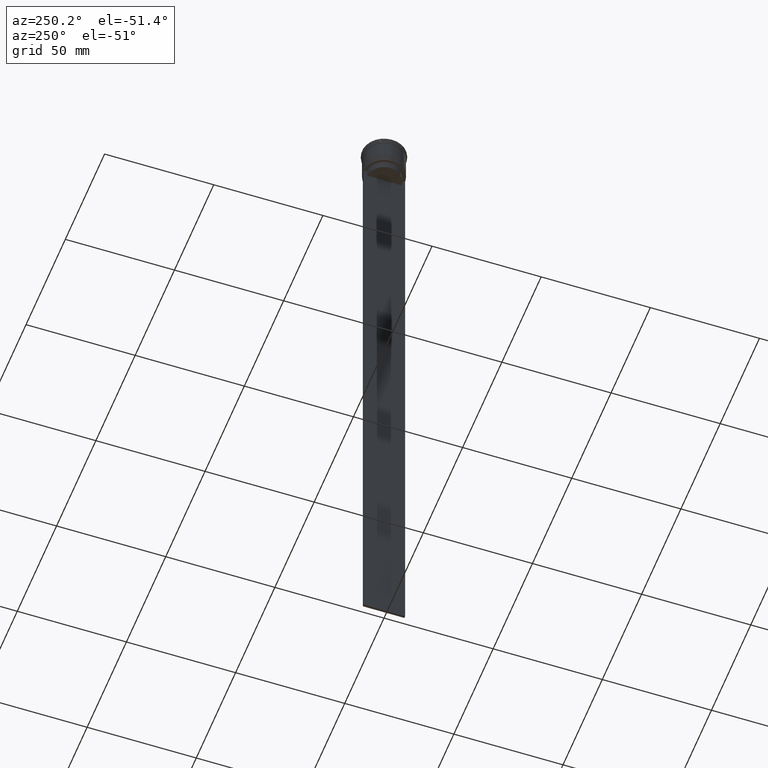
[diagram: clean part render]
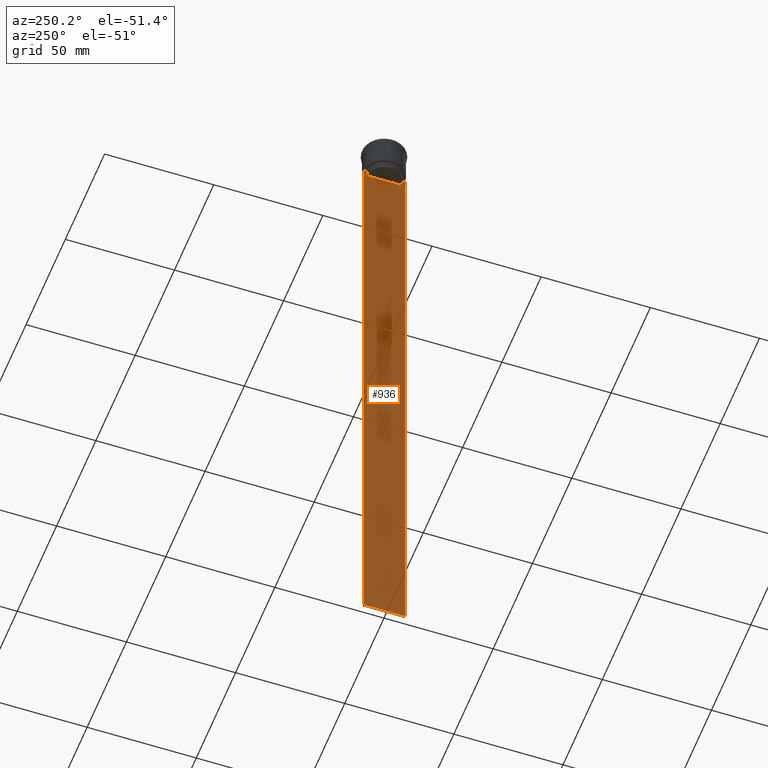
[diagram: same view with one face highlighted and labeled with its STEP entity id]
A machine part, auxiliary view. The second image highlights one B-rep face of the part: STEP entity #936.
In plain terms, the highlighted planar face has unit normal (-1, 0, 0).
Its self-contained STEP definition (entity closure, byte-faithful):
#73 = DIRECTION ( 'NONE',  ( -1.000000000000000000, 0.000000000000000000, 0.000000000000000000 ) ) ;
#122 = EDGE_CURVE ( 'NONE', #2658, #2182, #875, .T. ) ;
#123 = B_SPLINE_CURVE_WITH_KNOTS ( 'NONE', 3,
 ( #2434, #1222, #1264, #1023 ),
 .UNSPECIFIED., .F., .F.,
 ( 4, 4 ),
 ( 0.01426761478740281447, 0.01497538974438914448 ),
 .UNSPECIFIED. ) ;
#145 = VECTOR ( 'NONE', #1099, 1000.000000000000000 ) ;
#146 = EDGE_CURVE ( 'NONE', #366, #561, #1108, .T. ) ;
#155 = ORIENTED_EDGE ( 'NONE', *, *, #1243, .T. ) ;
#170 = ORIENTED_EDGE ( 'NONE', *, *, #933, .F. ) ;
#212 = CARTESIAN_POINT ( 'NONE',  ( -0.5000000000000000000, -8.385105843100605583, -14.00000000000000178 ) ) ;
#248 = ORIENTED_EDGE ( 'NONE', *, *, #519, .F. ) ;
#286 = CARTESIAN_POINT ( 'NONE',  ( -0.5000000000000000000, 7.884161337770803080, -14.50000000000000000 ) ) ;
#292 = EDGE_CURVE ( 'NONE', #2182, #600, #1343, .T. ) ;
#293 = CARTESIAN_POINT ( 'NONE',  ( -0.5000000000000000000, 8.385105843100605583, -14.00000000000000178 ) ) ;
#306 = EDGE_CURVE ( 'NONE', #1950, #2658, #2262, .T. ) ;
#349 = ORIENTED_EDGE ( 'NONE', *, *, #1444, .F. ) ;
#357 = ORIENTED_EDGE ( 'NONE', *, *, #2333, .F. ) ;
#360 = CARTESIAN_POINT ( 'NONE',  ( -0.5000000000000000000, -9.386692708297204035, -14.00000000000000178 ) ) ;
#366 = VERTEX_POINT ( 'NONE', #1432 ) ;
#396 = CARTESIAN_POINT ( 'NONE',  ( -0.5000000000000000000, -9.500000000000001776, -14.00000000000000178 ) ) ;
#403 = CARTESIAN_POINT ( 'NONE',  ( -0.5000000000000000000, 9.386692708297204035, -14.00000000000000178 ) ) ;
#451 = CARTESIAN_POINT ( 'NONE',  ( -0.5000000000000000000, -9.500000000000001776, -14.00000000000000178 ) ) ;
#491 = VECTOR ( 'NONE', #497, 1000.000000000000000 ) ;
#493 = CARTESIAN_POINT ( 'NONE',  ( -0.5000000000000000000, -7.884161337770803080, -14.50000000000000000 ) ) ;
#497 = DIRECTION ( 'NONE',  ( 0.000000000000000000, 0.000000000000000000, -1.000000000000000000 ) ) ;
#500 = LINE ( 'NONE', #729, #145 ) ;
#519 = EDGE_CURVE ( 'NONE', #2583, #1161, #1887, .T. ) ;
#524 = FACE_OUTER_BOUND ( 'NONE', #2243, .T. ) ;
#535 = CARTESIAN_POINT ( 'NONE',  ( -0.5000000000000000000, -9.500000000000001776, -14.00000000000000178 ) ) ;
#540 = VECTOR ( 'NONE', #738, 1000.000000000000000 ) ;
#561 = VERTEX_POINT ( 'NONE', #493 ) ;
#574 = EDGE_CURVE ( 'NONE', #561, #2238, #2443, .T. ) ;
#590 = VERTEX_POINT ( 'NONE', #293 ) ;
#600 = VERTEX_POINT ( 'NONE', #2194 ) ;
#671 = CARTESIAN_POINT ( 'NONE',  ( -0.5000000000000000000, -7.884161337770803080, -14.50000000000000000 ) ) ;
#695 = CARTESIAN_POINT ( 'NONE',  ( -0.5000000000000000000, -8.385105843100605583, -14.00000000000000178 ) ) ;
#707 = AXIS2_PLACEMENT_3D ( 'NONE', #1322, #73, #1123 ) ;
#729 = CARTESIAN_POINT ( 'NONE',  ( -0.5000000000000000000, 7.899999999999994138, -17.00000000000000000 ) ) ;
#738 = DIRECTION ( 'NONE',  ( 0.000000000000000000, -1.000000000000000000, 0.000000000000000000 ) ) ;
#744 = ORIENTED_EDGE ( 'NONE', *, *, #292, .F. ) ;
#875 = LINE ( 'NONE', #900, #491 ) ;
#885 = EDGE_CURVE ( 'NONE', #1161, #590, #2551, .T. ) ;
#900 = CARTESIAN_POINT ( 'NONE',  ( -0.5000000000000000000, -9.500000000000001776, 5.026297590440445440 ) ) ;
#929 = CARTESIAN_POINT ( 'NONE',  ( -0.5000000000000000000, -9.500000000000001776, -314.0000000000000000 ) ) ;
#933 = EDGE_CURVE ( 'NONE', #2231, #366, #500, .T. ) ;
#936 = ADVANCED_FACE ( 'NONE', ( #524 ), #1510, .T. ) ;
#991 = ORIENTED_EDGE ( 'NONE', *, *, #122, .F. ) ;
#1023 = CARTESIAN_POINT ( 'NONE',  ( -0.5000000000000000000, 7.884161337770803080, -14.50000000000000000 ) ) ;
#1026 = DIRECTION ( 'NONE',  ( 0.000000000000000000, 0.000000000000000000, -1.000000000000000000 ) ) ;
#1049 = VECTOR ( 'NONE', #1691, 1000.000000000000000 ) ;
#1055 = DIRECTION ( 'NONE',  ( 0.000000000000000000, 0.000000000000000000, -1.000000000000000000 ) ) ;
#1099 = DIRECTION ( 'NONE',  ( 0.000000000000000000, -1.000000000000000000, 0.000000000000000000 ) ) ;
#1108 = LINE ( 'NONE', #1721, #2473 ) ;
#1122 = ORIENTED_EDGE ( 'NONE', *, *, #146, .F. ) ;
#1123 = DIRECTION ( 'NONE',  ( 0.000000000000000000, 0.000000000000000000, 1.000000000000000000 ) ) ;
#1151 = CARTESIAN_POINT ( 'NONE',  ( -0.5000000000000000000, -9.500000000000001776, -14.00000000000000178 ) ) ;
#1161 = VERTEX_POINT ( 'NONE', #403 ) ;
#1175 = ORIENTED_EDGE ( 'NONE', *, *, #306, .F. ) ;
#1187 = VECTOR ( 'NONE', #1055, 1000.000000000000000 ) ;
#1222 = CARTESIAN_POINT ( 'NONE',  ( -0.5000000000000000000, 8.218133718559618828, -14.16667606394327983 ) ) ;
#1230 = EDGE_CURVE ( 'NONE', #1297, #2231, #2267, .T. ) ;
#1238 = LINE ( 'NONE', #1862, #1187 ) ;
#1243 = EDGE_CURVE ( 'NONE', #2583, #600, #1238, .T. ) ;
#1264 = CARTESIAN_POINT ( 'NONE',  ( -0.5000000000000000000, 8.051152811434374001, -14.33334332653219079 ) ) ;
#1297 = VERTEX_POINT ( 'NONE', #286 ) ;
#1321 = ORIENTED_EDGE ( 'NONE', *, *, #574, .F. ) ;
#1322 = CARTESIAN_POINT ( 'NONE',  ( -0.5000000000000000000, -9.500000000000001776, 5.026297590440445440 ) ) ;
#1343 = LINE ( 'NONE', #929, #1872 ) ;
#1432 = CARTESIAN_POINT ( 'NONE',  ( -0.5000000000000000000, -7.884161337770803080, -17.00000000000000000 ) ) ;
#1444 = EDGE_CURVE ( 'NONE', #2238, #1950, #2589, .T. ) ;
#1487 = CARTESIAN_POINT ( 'NONE',  ( -0.5000000000000000000, -9.500000000000001776, -14.00000000000000178 ) ) ;
#1491 = CARTESIAN_POINT ( 'NONE',  ( -0.5000000000000000000, -8.218133703942523738, -14.16667607853445787 ) ) ;
#1500 = ORIENTED_EDGE ( 'NONE', *, *, #885, .F. ) ;
#1510 = PLANE ( 'NONE',  #707 ) ;
#1514 = CARTESIAN_POINT ( 'NONE',  ( -0.5000000000000000000, -9.500000000000001776, -314.0000000000000000 ) ) ;
#1585 = CARTESIAN_POINT ( 'NONE',  ( -0.5000000000000000000, 9.499999999999994671, -14.00000000000000178 ) ) ;
#1654 = ORIENTED_EDGE ( 'NONE', *, *, #1230, .F. ) ;
#1691 = DIRECTION ( 'NONE',  ( 0.000000000000000000, -1.000000000000000000, 0.000000000000000000 ) ) ;
#1696 = VECTOR ( 'NONE', #1873, 1000.000000000000000 ) ;
#1721 = CARTESIAN_POINT ( 'NONE',  ( -0.5000000000000000000, -7.884161337770803080, 0.000000000000000000 ) ) ;
#1751 = DIRECTION ( 'NONE',  ( 0.000000000000000000, 1.000000000000000000, 0.000000000000000000 ) ) ;
#1862 = CARTESIAN_POINT ( 'NONE',  ( -0.5000000000000000000, 9.499999999999998224, 5.026297590440445440 ) ) ;
#1872 = VECTOR ( 'NONE', #1751, 1000.000000000000000 ) ;
#1873 = DIRECTION ( 'NONE',  ( 0.000000000000000000, -1.000000000000000000, 0.000000000000000000 ) ) ;
#1887 = LINE ( 'NONE', #451, #1049 ) ;
#1950 = VERTEX_POINT ( 'NONE', #360 ) ;
#2062 = CARTESIAN_POINT ( 'NONE',  ( -0.5000000000000000000, 7.884161337770803080, -17.00000000000000000 ) ) ;
#2182 = VERTEX_POINT ( 'NONE', #1514 ) ;
#2194 = CARTESIAN_POINT ( 'NONE',  ( -0.5000000000000000000, 9.499999999999998224, -314.0000000000000000 ) ) ;
#2226 = VECTOR ( 'NONE', #1026, 1000.000000000000000 ) ;
#2231 = VERTEX_POINT ( 'NONE', #2062 ) ;
#2238 = VERTEX_POINT ( 'NONE', #212 ) ;
#2243 = EDGE_LOOP ( 'NONE', ( #357, #1500, #248, #155, #744, #991, #1175, #349, #1321, #1122, #170, #1654 ) ) ;
#2262 = LINE ( 'NONE', #396, #1696 ) ;
#2267 = LINE ( 'NONE', #2280, #2226 ) ;
#2280 = CARTESIAN_POINT ( 'NONE',  ( -0.5000000000000000000, 7.884161337770803080, 0.000000000000000000 ) ) ;
#2333 = EDGE_CURVE ( 'NONE', #590, #1297, #123, .T. ) ;
#2344 = VECTOR ( 'NONE', #2540, 1000.000000000000000 ) ;
#2434 = CARTESIAN_POINT ( 'NONE',  ( -0.5000000000000000000, 8.385105843100605583, -14.00000000000000178 ) ) ;
#2443 = B_SPLINE_CURVE_WITH_KNOTS ( 'NONE', 3,
 ( #671, #2543, #1491, #695 ),
 .UNSPECIFIED., .F., .F.,
 ( 4, 4 ),
 ( 0.03673372442973153046, 0.03744389749832059688 ),
 .UNSPECIFIED. ) ;
#2473 = VECTOR ( 'NONE', #2546, 1000.000000000000000 ) ;
#2540 = DIRECTION ( 'NONE',  ( 0.000000000000000000, -1.000000000000000000, 0.000000000000000000 ) ) ;
#2543 = CARTESIAN_POINT ( 'NONE',  ( -0.5000000000000000000, -8.051152795888546265, -14.33334334204685057 ) ) ;
#2546 = DIRECTION ( 'NONE',  ( -0.000000000000000000, -0.000000000000000000, 1.000000000000000000 ) ) ;
#2551 = LINE ( 'NONE', #1151, #2344 ) ;
#2583 = VERTEX_POINT ( 'NONE', #1585 ) ;
#2589 = LINE ( 'NONE', #535, #540 ) ;
#2658 = VERTEX_POINT ( 'NONE', #1487 ) ;